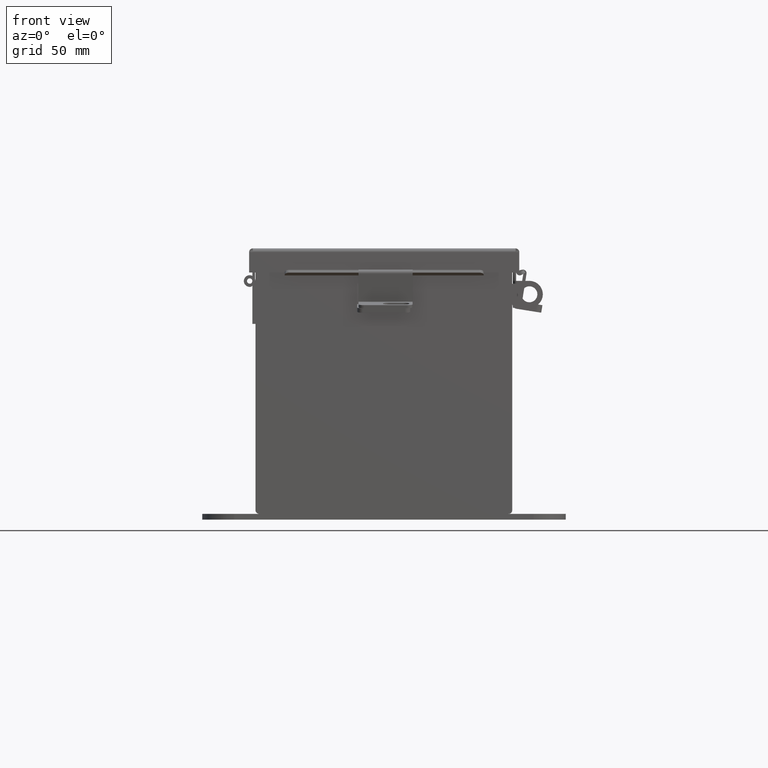
[diagram: clean part render]
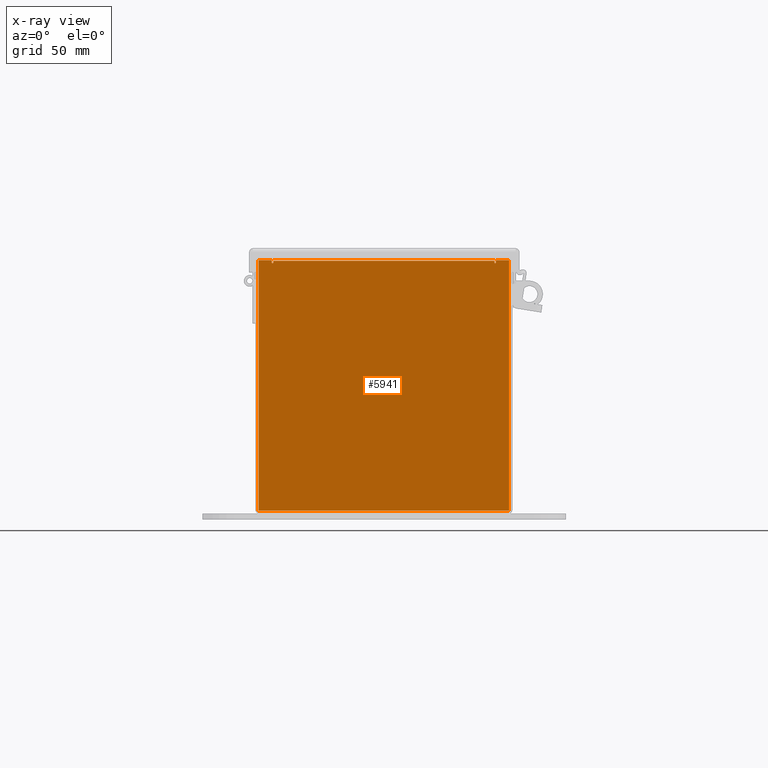
[diagram: x-ray — body ghosted, one internal face saturated and labeled with its STEP entity id]
A machine part, front view, then the same camera in x-ray: the body is ghosted and one INTERNAL B-rep face — a face not visible from any outside direction — is saturated and labeled: STEP entity #5941.
In plain terms, the highlighted planar face has unit normal (-0, 1, -0).
Its self-contained STEP definition (entity closure, byte-faithful):
#279 = ORIENTED_EDGE ( 'NONE', *, *, #14941, .F. ) ;
#284 = CARTESIAN_POINT ( 'NONE',  ( -2.582299999999998300, -0.07469999999999907300, 2.912300000000000600 ) ) ;
#332 = VECTOR ( 'NONE', #755, 39.37007874015748100 ) ;
#374 = EDGE_LOOP ( 'NONE', ( #9941, #5820, #5135, #12536, #7111, #279, #5935, #11766, #10336, #9949, #7333, #3743 ) ) ;
#528 = LINE ( 'NONE', #284, #6555 ) ;
#755 = DIRECTION ( 'NONE',  ( 0.0000000000000000000, 0.0000000000000000000, 1.000000000000000000 ) ) ;
#817 = DIRECTION ( 'NONE',  ( -1.107301242518083700E-030, -1.000000000000000000, 0.0000000000000000000 ) ) ;
#964 = VECTOR ( 'NONE', #1469, 39.37007874015748100 ) ;
#1073 = LINE ( 'NONE', #2378, #7089 ) ;
#1188 = EDGE_CURVE ( 'NONE', #12395, #15338, #8114, .T. ) ;
#1416 = CARTESIAN_POINT ( 'NONE',  ( -2.619649999999998300, -0.07469999999999907300, 2.925299999999998200 ) ) ;
#1469 = DIRECTION ( 'NONE',  ( 0.0000000000000000000, 1.186875369640613200E-014, -1.000000000000000000 ) ) ;
#1498 = DIRECTION ( 'NONE',  ( -1.107301242518083700E-030, -1.000000000000000000, 0.0000000000000000000 ) ) ;
#1543 = VECTOR ( 'NONE', #11123, 39.37007874015748100 ) ;
#1848 = CARTESIAN_POINT ( 'NONE',  ( -2.925299999999998200, -0.07470000000000015500, 2.925299999999999600 ) ) ;
#2378 = CARTESIAN_POINT ( 'NONE',  ( 2.925300000000001800, -0.07469999999999907300, 2.925299999999998200 ) ) ;
#2573 = VERTEX_POINT ( 'NONE', #10504 ) ;
#2663 = CARTESIAN_POINT ( 'NONE',  ( 2.619650000000001800, -0.07469999999999907300, 2.925299999999997300 ) ) ;
#2664 = DIRECTION ( 'NONE',  ( 1.000000000000000000, 1.107301242518083700E-030, 0.0000000000000000000 ) ) ;
#2818 = CARTESIAN_POINT ( 'NONE',  ( -2.582299999999998300, -0.07469999999999907300, 2.874950000000001400 ) ) ;
#3257 = CARTESIAN_POINT ( 'NONE',  ( 2.619650000000001800, -0.07469999999999907300, 2.874949999999998300 ) ) ;
#3299 = DIRECTION ( 'NONE',  ( 0.0000000000000000000, 0.0000000000000000000, 1.000000000000000000 ) ) ;
#3309 = EDGE_CURVE ( 'NONE', #2573, #7887, #7626, .T. ) ;
#3588 = LINE ( 'NONE', #2818, #332 ) ;
#3590 = CARTESIAN_POINT ( 'NONE',  ( -2.582299999999998300, -0.07470000000000015500, 2.912300000000000600 ) ) ;
#3743 = ORIENTED_EDGE ( 'NONE', *, *, #8234, .F. ) ;
#3894 = CARTESIAN_POINT ( 'NONE',  ( 0.0000000000000000000, -0.07470000000000015500, 0.0000000000000000000 ) ) ;
#3901 = DIRECTION ( 'NONE',  ( 1.000000000000000000, 1.107301242518083700E-030, -0.0000000000000000000 ) ) ;
#3954 = AXIS2_PLACEMENT_3D ( 'NONE', #3894, #13148, #10425 ) ;
#4298 = DIRECTION ( 'NONE',  ( -1.000000000000000000, -1.107301242518083700E-030, 0.0000000000000000000 ) ) ;
#4359 = CARTESIAN_POINT ( 'NONE',  ( 2.582300000000001400, -0.07469999999999907300, 2.912299999999997400 ) ) ;
#4544 = LINE ( 'NONE', #1416, #964 ) ;
#4550 = VERTEX_POINT ( 'NONE', #4359 ) ;
#5061 = VECTOR ( 'NONE', #3299, 39.37007874015748100 ) ;
#5135 = ORIENTED_EDGE ( 'NONE', *, *, #11297, .F. ) ;
#5820 = ORIENTED_EDGE ( 'NONE', *, *, #6869, .F. ) ;
#5851 = EDGE_CURVE ( 'NONE', #8898, #11186, #8149, .T. ) ;
#5935 = ORIENTED_EDGE ( 'NONE', *, *, #5851, .F. ) ;
#5941 = ADVANCED_FACE ( 'NONE', ( #7372 ), #6107, .T. ) ;
#6005 = DIRECTION ( 'NONE',  ( 0.0000000000000000000, 0.0000000000000000000, -1.000000000000000000 ) ) ;
#6028 = CARTESIAN_POINT ( 'NONE',  ( -2.925299999999998200, -0.07470000000000015500, 2.925299999999999600 ) ) ;
#6107 = PLANE ( 'NONE',  #3954 ) ;
#6175 = CARTESIAN_POINT ( 'NONE',  ( 2.582300000000001400, -0.07469999999999797600, 2.912299999999997400 ) ) ;
#6555 = VECTOR ( 'NONE', #3901, 39.37007874015748100 ) ;
#6611 = CARTESIAN_POINT ( 'NONE',  ( -2.619649999999998300, -0.07470000000000015500, 2.925299999999998200 ) ) ;
#6869 = EDGE_CURVE ( 'NONE', #8420, #12395, #4544, .T. ) ;
#6983 = AXIS2_PLACEMENT_3D ( 'NONE', #8697, #1498, #9947 ) ;
#7089 = VECTOR ( 'NONE', #6005, 39.37007874015748100 ) ;
#7111 = ORIENTED_EDGE ( 'NONE', *, *, #3309, .F. ) ;
#7333 = ORIENTED_EDGE ( 'NONE', *, *, #13775, .F. ) ;
#7372 = FACE_OUTER_BOUND ( 'NONE', #374, .T. ) ;
#7510 = CARTESIAN_POINT ( 'NONE',  ( 2.619650000000001800, -0.07469999999999797600, 2.874949999999998300 ) ) ;
#7626 = LINE ( 'NONE', #10699, #13612 ) ;
#7887 = VERTEX_POINT ( 'NONE', #10872 ) ;
#8034 = CARTESIAN_POINT ( 'NONE',  ( -2.600974999999998300, -0.07469999999999907300, 2.874950000000001400 ) ) ;
#8112 = EDGE_CURVE ( 'NONE', #7887, #11486, #12570, .T. ) ;
#8114 = CIRCLE ( 'NONE', #11618, 0.01867500000000003900 ) ;
#8149 = LINE ( 'NONE', #6028, #10973 ) ;
#8234 = EDGE_CURVE ( 'NONE', #15338, #9878, #3588, .T. ) ;
#8241 = CARTESIAN_POINT ( 'NONE',  ( 2.582300000000001400, -0.07469999999999907300, 2.874949999999998300 ) ) ;
#8420 = VERTEX_POINT ( 'NONE', #6611 ) ;
#8697 = CARTESIAN_POINT ( 'NONE',  ( 2.600975000000001800, -0.07469999999999797600, 2.874949999999998300 ) ) ;
#8898 = VERTEX_POINT ( 'NONE', #2663 ) ;
#9400 = EDGE_CURVE ( 'NONE', #14743, #8898, #10848, .T. ) ;
#9878 = VERTEX_POINT ( 'NONE', #3590 ) ;
#9941 = ORIENTED_EDGE ( 'NONE', *, *, #1188, .F. ) ;
#9947 = DIRECTION ( 'NONE',  ( 0.0000000000000000000, 0.0000000000000000000, -1.000000000000000000 ) ) ;
#9949 = ORIENTED_EDGE ( 'NONE', *, *, #14388, .F. ) ;
#10336 = ORIENTED_EDGE ( 'NONE', *, *, #13769, .F. ) ;
#10425 = DIRECTION ( 'NONE',  ( 0.0000000000000000000, 0.0000000000000000000, -1.000000000000000000 ) ) ;
#10484 = VECTOR ( 'NONE', #14850, 39.37007874015748100 ) ;
#10504 = CARTESIAN_POINT ( 'NONE',  ( 2.925299999999992000, -0.07470000000000015500, -2.925300000000010700 ) ) ;
#10548 = CARTESIAN_POINT ( 'NONE',  ( -2.582299999999998300, -0.07470000000000015500, 2.874950000000001400 ) ) ;
#10699 = CARTESIAN_POINT ( 'NONE',  ( -2.925300000000008400, -0.07470000000000015500, -2.925300000000010700 ) ) ;
#10737 = CARTESIAN_POINT ( 'NONE',  ( 2.925300000000001800, -0.07469999999999907300, 2.925299999999998200 ) ) ;
#10848 = LINE ( 'NONE', #7510, #10484 ) ;
#10872 = CARTESIAN_POINT ( 'NONE',  ( -2.925300000000008400, -0.07470000000000015500, -2.925300000000010700 ) ) ;
#10973 = VECTOR ( 'NONE', #2664, 39.37007874015748100 ) ;
#11069 = LINE ( 'NONE', #6175, #13836 ) ;
#11123 = DIRECTION ( 'NONE',  ( 1.000000000000000000, 1.107301242518083700E-030, 0.0000000000000000000 ) ) ;
#11151 = LINE ( 'NONE', #13052, #1543 ) ;
#11186 = VERTEX_POINT ( 'NONE', #10737 ) ;
#11297 = EDGE_CURVE ( 'NONE', #11486, #8420, #11151, .T. ) ;
#11486 = VERTEX_POINT ( 'NONE', #12684 ) ;
#11618 = AXIS2_PLACEMENT_3D ( 'NONE', #8034, #817, #14976 ) ;
#11766 = ORIENTED_EDGE ( 'NONE', *, *, #9400, .F. ) ;
#12395 = VERTEX_POINT ( 'NONE', #14315 ) ;
#12536 = ORIENTED_EDGE ( 'NONE', *, *, #8112, .F. ) ;
#12570 = LINE ( 'NONE', #1848, #5061 ) ;
#12684 = CARTESIAN_POINT ( 'NONE',  ( -2.925299999999998200, -0.07470000000000015500, 2.925299999999999600 ) ) ;
#12940 = CIRCLE ( 'NONE', #6983, 0.01867500000000003900 ) ;
#13052 = CARTESIAN_POINT ( 'NONE',  ( -2.925299999999998200, -0.07470000000000015500, 2.925299999999999600 ) ) ;
#13148 = DIRECTION ( 'NONE',  ( -1.107301242518083700E-030, -1.000000000000000000, -0.0000000000000000000 ) ) ;
#13350 = DIRECTION ( 'NONE',  ( 0.0000000000000000000, 0.0000000000000000000, -1.000000000000000000 ) ) ;
#13612 = VECTOR ( 'NONE', #4298, 39.37007874015748100 ) ;
#13769 = EDGE_CURVE ( 'NONE', #14205, #14743, #12940, .T. ) ;
#13775 = EDGE_CURVE ( 'NONE', #9878, #4550, #528, .T. ) ;
#13836 = VECTOR ( 'NONE', #13350, 39.37007874015748100 ) ;
#14205 = VERTEX_POINT ( 'NONE', #8241 ) ;
#14315 = CARTESIAN_POINT ( 'NONE',  ( -2.619649999999998300, -0.07470000000000015500, 2.874949999999999200 ) ) ;
#14388 = EDGE_CURVE ( 'NONE', #4550, #14205, #11069, .T. ) ;
#14743 = VERTEX_POINT ( 'NONE', #3257 ) ;
#14850 = DIRECTION ( 'NONE',  ( 1.085143195099989400E-014, -1.186875369640610400E-014, 1.000000000000000000 ) ) ;
#14941 = EDGE_CURVE ( 'NONE', #11186, #2573, #1073, .T. ) ;
#14976 = DIRECTION ( 'NONE',  ( 0.0000000000000000000, 0.0000000000000000000, -1.000000000000000000 ) ) ;
#15338 = VERTEX_POINT ( 'NONE', #10548 ) ;